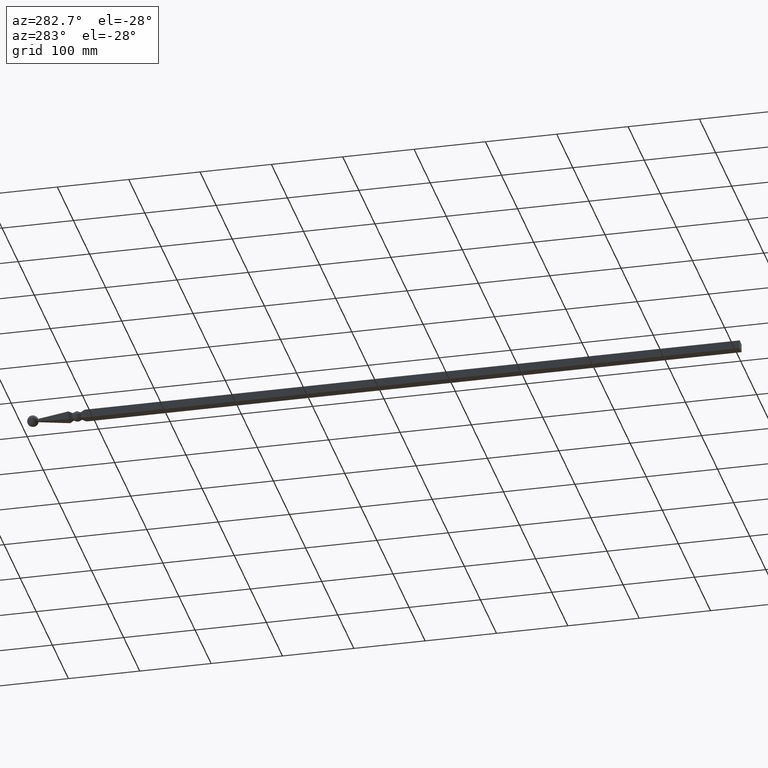
[diagram: clean part render]
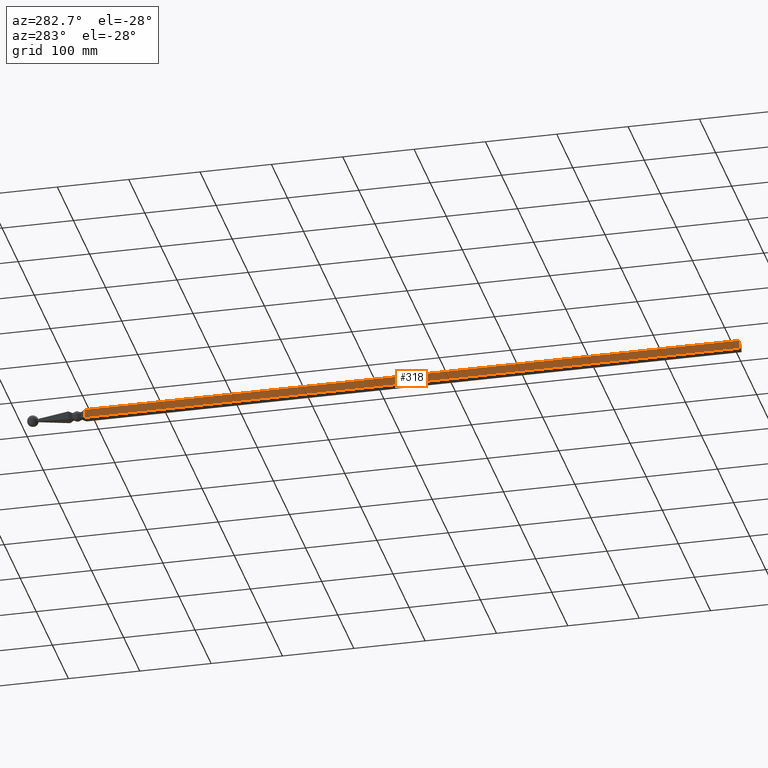
[diagram: same view with one face highlighted and labeled with its STEP entity id]
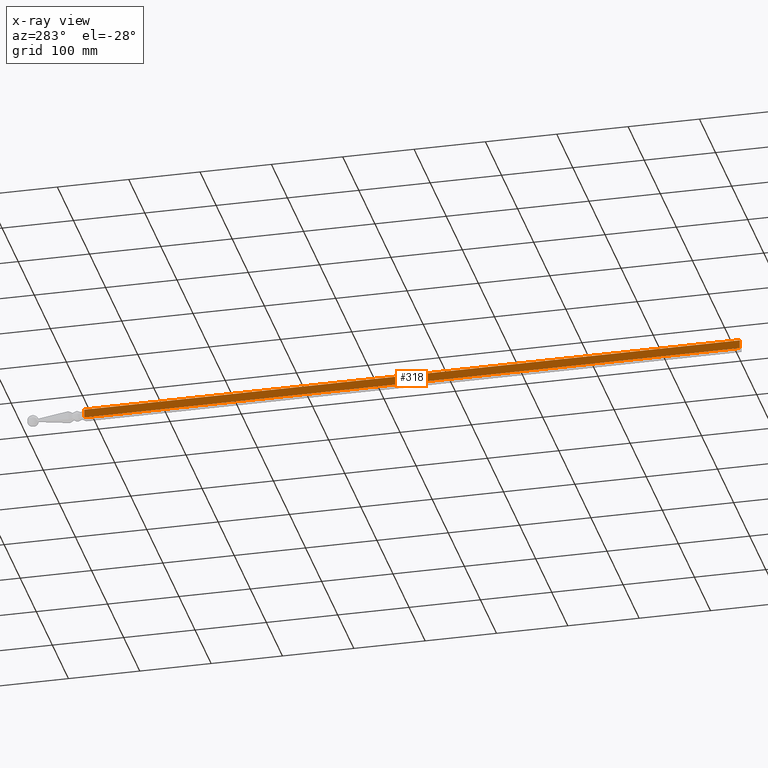
[diagram: x-ray of the same camera — body ghosted, the highlighted face saturated]
A machine part, auxiliary view. The second image highlights one B-rep face of the part: STEP entity #318.
The next image is the same camera in x-ray: the body ghosted, the highlighted face saturated — about 0% of this face is hidden behind the body in this view.
In plain terms, the highlighted planar face has unit normal (1, 0, 0).
Its self-contained STEP definition (entity closure, byte-faithful):
#10 = CARTESIAN_POINT ( 'NONE',  ( -5.999999999997209343, 0.000000000000000000, 5.999999999999999112 ) ) ;
#318 = ADVANCED_FACE ( 'NONE', ( #10634 ), #3831, .F. ) ;
#924 = VERTEX_POINT ( 'NONE', #6599 ) ;
#1436 = VERTEX_POINT ( 'NONE', #10 ) ;
#1453 = DIRECTION ( 'NONE',  ( 7.228014483236695816E-17, 0.000000000000000000, -1.000000000000000000 ) ) ;
#1703 = DIRECTION ( 'NONE',  ( 7.228014483236695816E-17, 0.000000000000000000, -1.000000000000000000 ) ) ;
#1843 = DIRECTION ( 'NONE',  ( -0.000000000000000000, 1.000000000000000000, -0.000000000000000000 ) ) ;
#1934 = DIRECTION ( 'NONE',  ( -0.000000000000000000, 1.000000000000000000, -0.000000000000000000 ) ) ;
#2255 = ORIENTED_EDGE ( 'NONE', *, *, #3013, .F. ) ;
#2311 = EDGE_CURVE ( 'NONE', #12349, #924, #7380, .T. ) ;
#3013 = EDGE_CURVE ( 'NONE', #1436, #6417, #4216, .T. ) ;
#3082 = VECTOR ( 'NONE', #5912, 1000.000000000000000 ) ;
#3561 = VECTOR ( 'NONE', #1453, 1000.000000000000000 ) ;
#3831 = PLANE ( 'NONE',  #7491 ) ;
#3919 = DIRECTION ( 'NONE',  ( 1.000000000000000000, 0.000000000000000000, 7.228014483236695816E-17 ) ) ;
#4216 = LINE ( 'NONE', #4985, #3082 ) ;
#4445 = CARTESIAN_POINT ( 'NONE',  ( -5.999999999997209343, 918.5000000000000000, 5.999999999999999112 ) ) ;
#4985 = CARTESIAN_POINT ( 'NONE',  ( -5.999999999997209343, 0.000000000000000000, 5.999999999999999112 ) ) ;
#5537 = CARTESIAN_POINT ( 'NONE',  ( -5.999999999997209343, 918.5000000000000000, 5.999999999999999112 ) ) ;
#5912 = DIRECTION ( 'NONE',  ( 7.228014483236695816E-17, 7.069638312436156239E-34, -1.000000000000000000 ) ) ;
#6242 = ORIENTED_EDGE ( 'NONE', *, *, #12206, .T. ) ;
#6417 = VERTEX_POINT ( 'NONE', #10704 ) ;
#6599 = CARTESIAN_POINT ( 'NONE',  ( -5.999999999997208455, 918.5000000000000000, -6.000000000000001776 ) ) ;
#7267 = ORIENTED_EDGE ( 'NONE', *, *, #2311, .T. ) ;
#7380 = LINE ( 'NONE', #5537, #3561 ) ;
#7491 = AXIS2_PLACEMENT_3D ( 'NONE', #12252, #3919, #1703 ) ;
#8789 = LINE ( 'NONE', #9074, #10104 ) ;
#9074 = CARTESIAN_POINT ( 'NONE',  ( -5.999999999997208455, -16.97056274847707869, -6.000000000000001776 ) ) ;
#9212 = CARTESIAN_POINT ( 'NONE',  ( -5.999999999997209343, -16.97056274847707869, 5.999999999999999112 ) ) ;
#10104 = VECTOR ( 'NONE', #1843, 1000.000000000000000 ) ;
#10273 = LINE ( 'NONE', #9212, #13249 ) ;
#10634 = FACE_OUTER_BOUND ( 'NONE', #11544, .T. ) ;
#10704 = CARTESIAN_POINT ( 'NONE',  ( -5.999999999997208455, 8.483565974923389882E-33, -6.000000000000002665 ) ) ;
#11544 = EDGE_LOOP ( 'NONE', ( #2255, #6242, #7267, #12716 ) ) ;
#12143 = EDGE_CURVE ( 'NONE', #6417, #924, #8789, .T. ) ;
#12206 = EDGE_CURVE ( 'NONE', #1436, #12349, #10273, .T. ) ;
#12252 = CARTESIAN_POINT ( 'NONE',  ( -5.999999999997209343, -16.97056274847707869, 5.999999999999999112 ) ) ;
#12349 = VERTEX_POINT ( 'NONE', #4445 ) ;
#12716 = ORIENTED_EDGE ( 'NONE', *, *, #12143, .F. ) ;
#13249 = VECTOR ( 'NONE', #1934, 1000.000000000000000 ) ;